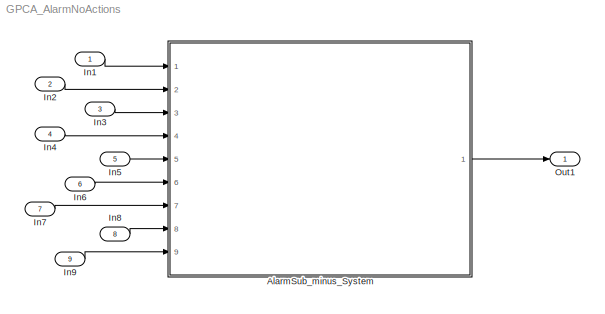
MODEL GPCA_AlarmNoActions
KIND model
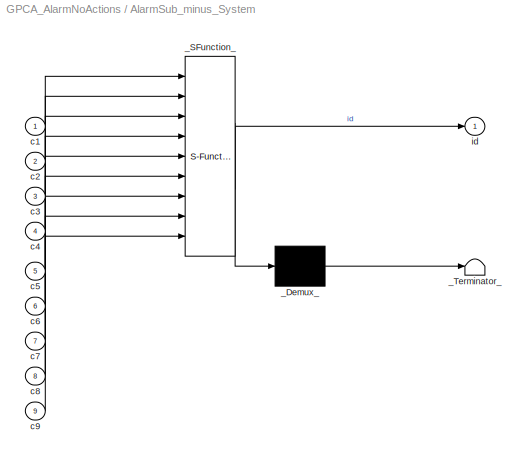
BLOCK [SubSystem] AlarmSub_minus_System
  ErrorFcn = Stateflow.Translate.translate
  PermitHierarchicalResolution = ExplicitOnly
  Ports = [9, 1]
  RequestExecContextInheritance = off
  SFBlockType = Chart
  SID = 1
  TreatAsAtomicUnit = on
  Variant = off
BLOCK [Demux] AlarmSub_minus_System/_Demux_
  Outputs = 1
  Ports = [1, 1]
  SID = 1::330
BLOCK [S-Function] AlarmSub_minus_System/_SFunction_
  EnableBusSupport = on
  FunctionName = sf_sfun
  PortCounts = [9 2]
  Ports = [9, 2]
  SFcnIsStateOwnerBlock = off
  SFunctionDeploymentMode = off
  SID = 1::329
  Tag = Stateflow S-Function GPCA_AlarmNoActions 2
BLOCK [Terminator] AlarmSub_minus_System/_Terminator_
  SID = 1::331
BLOCK [Inport] AlarmSub_minus_System/c1
  IconDisplay = Port number
  OutDataTypeStr = boolean
  SID = 1::389
BLOCK [Inport] AlarmSub_minus_System/c2
  IconDisplay = Port number
  OutDataTypeStr = boolean
  Port = 2
  SID = 1::390
BLOCK [Inport] AlarmSub_minus_System/c3
  IconDisplay = Port number
  OutDataTypeStr = boolean
  Port = 3
  SID = 1::391
BLOCK [Inport] AlarmSub_minus_System/c4
  IconDisplay = Port number
  OutDataTypeStr = boolean
  Port = 4
  SID = 1::392
BLOCK [Inport] AlarmSub_minus_System/c5
  IconDisplay = Port number
  OutDataTypeStr = boolean
  Port = 5
  SID = 1::393
BLOCK [Inport] AlarmSub_minus_System/c6
  IconDisplay = Port number
  OutDataTypeStr = boolean
  Port = 6
  SID = 1::394
BLOCK [Inport] AlarmSub_minus_System/c7
  IconDisplay = Port number
  OutDataTypeStr = boolean
  Port = 7
  SID = 1::395
BLOCK [Inport] AlarmSub_minus_System/c8
  IconDisplay = Port number
  OutDataTypeStr = boolean
  Port = 8
  SID = 1::396
BLOCK [Inport] AlarmSub_minus_System/c9
  IconDisplay = Port number
  OutDataTypeStr = boolean
  Port = 9
  SID = 1::397
BLOCK [Outport] AlarmSub_minus_System/id
  IconDisplay = Port number
  SID = 1::381
BLOCK [Inport] In1
  IconDisplay = Port number
  OutDataTypeStr = boolean
  PortDimensions = 1
  SID = 1038
BLOCK [Inport] In2
  IconDisplay = Port number
  OutDataTypeStr = boolean
  Port = 2
  PortDimensions = 1
  SID = 1039
BLOCK [Inport] In3
  IconDisplay = Port number
  OutDataTypeStr = boolean
  Port = 3
  PortDimensions = 1
  SID = 1040
BLOCK [Inport] In4
  IconDisplay = Port number
  OutDataTypeStr = boolean
  Port = 4
  PortDimensions = 1
  SID = 1041
BLOCK [Inport] In5
  IconDisplay = Port number
  OutDataTypeStr = boolean
  Port = 5
  PortDimensions = 1
  SID = 1042
BLOCK [Inport] In6
  IconDisplay = Port number
  OutDataTypeStr = boolean
  Port = 6
  PortDimensions = 1
  SID = 1043
BLOCK [Inport] In7
  IconDisplay = Port number
  OutDataTypeStr = boolean
  Port = 7
  PortDimensions = 1
  SID = 1044
BLOCK [Inport] In8
  IconDisplay = Port number
  OutDataTypeStr = boolean
  Port = 8
  PortDimensions = 1
  SID = 1045
BLOCK [Inport] In9
  IconDisplay = Port number
  OutDataTypeStr = boolean
  Port = 9
  PortDimensions = 1
  SID = 1046
BLOCK [Outport] Out1
  IconDisplay = Port number
  SID = 1037
LINE AlarmSub_minus_System/_Demux_:1 -> AlarmSub_minus_System/_Terminator_:1
LINE AlarmSub_minus_System/_SFunction_:1 -> AlarmSub_minus_System/_Demux_:1
LINE AlarmSub_minus_System/_SFunction_:2 -> AlarmSub_minus_System/id:1
LINE AlarmSub_minus_System/c1:1 -> AlarmSub_minus_System/_SFunction_:1
LINE AlarmSub_minus_System/c2:1 -> AlarmSub_minus_System/_SFunction_:2
LINE AlarmSub_minus_System/c3:1 -> AlarmSub_minus_System/_SFunction_:3
LINE AlarmSub_minus_System/c4:1 -> AlarmSub_minus_System/_SFunction_:4
LINE AlarmSub_minus_System/c5:1 -> AlarmSub_minus_System/_SFunction_:5
LINE AlarmSub_minus_System/c6:1 -> AlarmSub_minus_System/_SFunction_:6
LINE AlarmSub_minus_System/c7:1 -> AlarmSub_minus_System/_SFunction_:7
LINE AlarmSub_minus_System/c8:1 -> AlarmSub_minus_System/_SFunction_:8
LINE AlarmSub_minus_System/c9:1 -> AlarmSub_minus_System/_SFunction_:9
LINE AlarmSub_minus_System:1 -> Out1:1
LINE In1:1 -> AlarmSub_minus_System:1
LINE In2:1 -> AlarmSub_minus_System:2
LINE In3:1 -> AlarmSub_minus_System:3
LINE In4:1 -> AlarmSub_minus_System:4
LINE In5:1 -> AlarmSub_minus_System:5
LINE In6:1 -> AlarmSub_minus_System:6
LINE In7:1 -> AlarmSub_minus_System:7
LINE In8:1 -> AlarmSub_minus_System:8
LINE In9:1 -> AlarmSub_minus_System:9
CHART AlarmSub_minus_System states=78 transitions=123
  STATE_LABEL 'Alarms'
  STATE_LABEL 'CheckAlarm'
  STATE_LABEL 'CancelAlarm'
  STATE_LABEL 'ON\\nen: id = 2112;\\n'
  STATE_LABEL 'OFF\\nen: id = 2111;'
  STATE_LABEL 'Disabled\\nentry: id=2224;\\n'
  STATE_LABEL 'Level4'
  STATE_LABEL 'IsEmptyReservoir'
  STATE_LABEL 'No\\nen: id=21111;'
  STATE_LABEL 'Yes\\nen: id=21112;'
  STATE_LABEL 'IsHardwareError'
  STATE_LABEL 'Yes\\nen: id=21122;'
  STATE_LABEL 'No\\nen: id=21121;'
  STATE_LABEL 'IsEnviromentalError'
  STATE_LABEL 'Yes\\nen: id=21132;'
  STATE_LABEL 'No\\nen: id=21131;'
  STATE_LABEL 'Level3'
  STATE_LABEL 'IsOverInfusionFlowRate\\nentry:id=21131;\\n'
  STATE_LABEL 'Yes\\nentry:id=21133;'
  STATE_LABEL 'Check\\nentry:id=21132;'
  STATE_LABEL 'Monitor\\nentry:id=21134;'
  STATE_LABEL 'Silenced\\nentry: id=2223;\\n '
  STATE_LABEL 'IsOverInfusionVTBI'
  STATE_LABEL 'Yes\\nen: id=211342'
  STATE_LABEL 'No\\nen: id = 211341;'
  STATE_LABEL 'IsAirInLine'
  STATE_LABEL 'Yes\\nen: id=211332'
  STATE_LABEL 'No\\nen: id = 211331;'
  STATE_LABEL 'IsOcclusion'
  STATE_LABEL 'Yes\\nen: id=31132'
  STATE_LABEL 'No\\nen: id=31131'
  STATE_LABEL 'IsDoor_Open'
  STATE_LABEL 'No\\nen: id=32221 '
  STATE_LABEL 'Yes\\nen: id=32222'
  STATE_LABEL 'NOT_ON\\nen: id = 1;'
  STATE_LABEL 'Level2'
  STATE_LABEL 'IsLowReservoir'
  STATE_LABEL 'No\\nen: id = 42421;'
  STATE_LABEL 'Yes\\nen: id=42422;'
  STATE_LABEL 'Level1'
